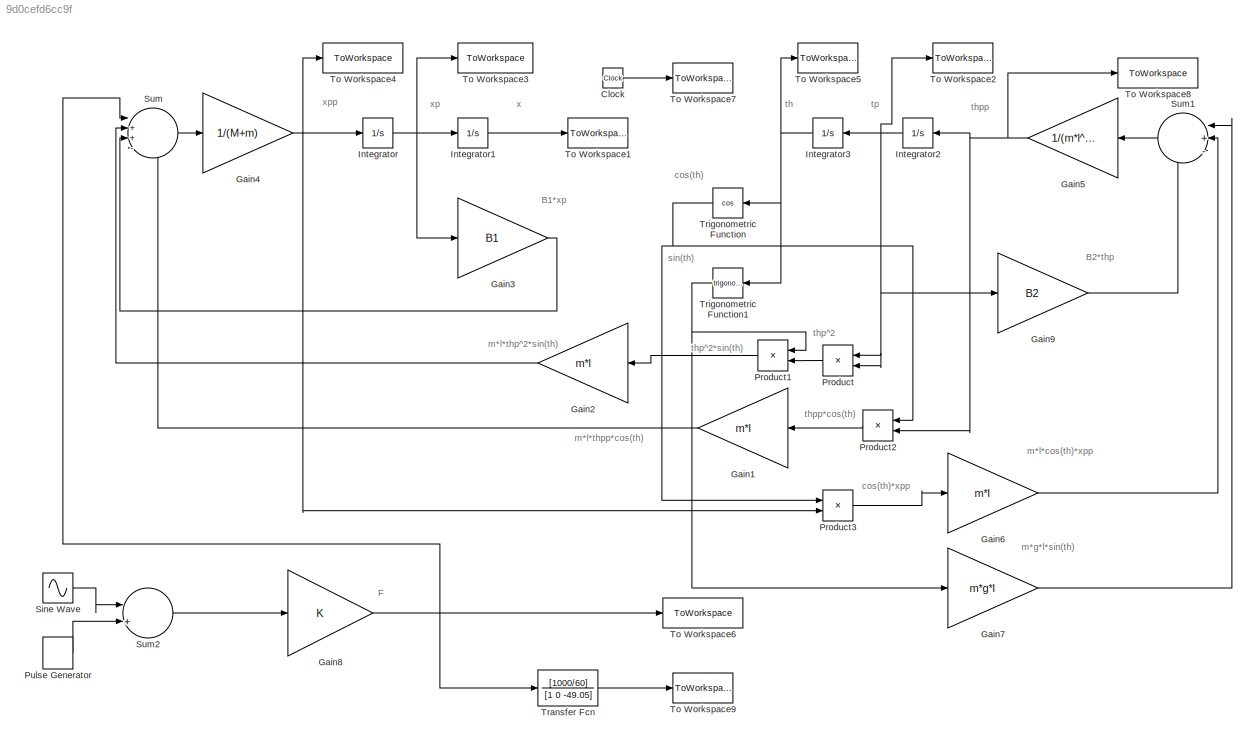
MODEL slx_9d0cefd6cc9f
KIND model
CONFIG InitFcn = M=0.2;m=0.1;l=0.3;B1=0.1;B2=0.1;g=9.81;
BLOCK [Clock] Clock
  Decimation = 100
BLOCK [Gain] Gain1
  Gain = m*l
  OutDataTypeStr = Inherit: Inherit via internal rule
  ParamDataTypeStr = Inherit: Inherit via internal rule
  SaturateOnIntegerOverflow = off
BLOCK [Gain] Gain2
  Gain = m*l
  OutDataTypeStr = Inherit: Inherit via internal rule
  ParamDataTypeStr = Inherit: Inherit via internal rule
  SaturateOnIntegerOverflow = off
BLOCK [Gain] Gain3
  Gain = B1
  OutDataTypeStr = Inherit: Inherit via internal rule
  ParamDataTypeStr = Inherit: Inherit via internal rule
  SaturateOnIntegerOverflow = off
BLOCK [Gain] Gain4
  Gain = 1/(M+m)
  OutDataTypeStr = Inherit: Inherit via internal rule
  ParamDataTypeStr = Inherit: Inherit via internal rule
  SaturateOnIntegerOverflow = off
BLOCK [Gain] Gain5
  Gain = 1/(m*l^2)
  OutDataTypeStr = Inherit: Inherit via internal rule
  ParamDataTypeStr = Inherit: Inherit via internal rule
  SaturateOnIntegerOverflow = off
BLOCK [Gain] Gain6
  Gain = m*l
  OutDataTypeStr = Inherit: Inherit via internal rule
  ParamDataTypeStr = Inherit: Inherit via internal rule
  SaturateOnIntegerOverflow = off
BLOCK [Gain] Gain7
  Gain = m*g*l
  OutDataTypeStr = Inherit: Inherit via internal rule
  ParamDataTypeStr = Inherit: Inherit via internal rule
  SaturateOnIntegerOverflow = off
BLOCK [Gain] Gain8
  OutDataTypeStr = Inherit: Inherit via internal rule
  ParamDataTypeStr = Inherit: Inherit via internal rule
  SaturateOnIntegerOverflow = off
BLOCK [Gain] Gain9
  Gain = B2
  OutDataTypeStr = Inherit: Inherit via internal rule
  ParamDataTypeStr = Inherit: Inherit via internal rule
  SaturateOnIntegerOverflow = off
BLOCK [Integrator] Integrator
  Ports = [1, 1]
BLOCK [Integrator] Integrator1
  Ports = [1, 1]
BLOCK [Integrator] Integrator2
  Ports = [1, 1]
BLOCK [Integrator] Integrator3
  InitialCondition = pi/2
  LimitOutput = on
  LowerSaturationLimit = -pi
  Ports = [1, 1]
  UpperSaturationLimit = pi
BLOCK [Product] Product
  InputSameDT = off
  OutDataTypeStr = Inherit: Inherit via internal rule
  Ports = [2, 1]
  RndMeth = Floor
  SaturateOnIntegerOverflow = off
BLOCK [Product] Product1
  InputSameDT = off
  OutDataTypeStr = Inherit: Inherit via internal rule
  Ports = [2, 1]
  RndMeth = Floor
  SaturateOnIntegerOverflow = off
BLOCK [Product] Product2
  InputSameDT = off
  OutDataTypeStr = Inherit: Inherit via internal rule
  Ports = [2, 1]
  RndMeth = Floor
  SaturateOnIntegerOverflow = off
BLOCK [Product] Product3
  InputSameDT = off
  OutDataTypeStr = Inherit: Inherit via internal rule
  Ports = [2, 1]
  RndMeth = Floor
  SaturateOnIntegerOverflow = off
BLOCK [DiscretePulseGenerator] Pulse Generator
  Amplitude = 0.1
  Period = 1
  Ports = [0, 1]
  PulseType = Time based
  PulseWidth = 50
BLOCK [Sin] Sine Wave
  Amplitude = 0
  Ports = [0, 1]
  SampleTime = 0
BLOCK [Sum] Sum
  IconShape = round
  InputSameDT = off
  Inputs = |++--
  OutDataTypeStr = Inherit: Inherit via internal rule
  Ports = [4, 1]
  SaturateOnIntegerOverflow = off
BLOCK [Sum] Sum1
  IconShape = round
  InputSameDT = off
  Inputs = |+--
  OutDataTypeStr = Inherit: Inherit via internal rule
  Ports = [3, 1]
  SaturateOnIntegerOverflow = off
BLOCK [Sum] Sum2
  IconShape = round
  InputSameDT = off
  Inputs = |++
  OutDataTypeStr = Inherit: Inherit via internal rule
  Ports = [2, 1]
  SaturateOnIntegerOverflow = off
BLOCK [ToWorkspace] To Workspace1
  MaxDataPoints = inf
  Ports = [1]
  SampleTime = 0.01
  VariableName = Posicion_x
BLOCK [ToWorkspace] To Workspace2
  MaxDataPoints = inf
  Ports = [1]
  SampleTime = 0.01
  VariableName = Velocidad_th
BLOCK [ToWorkspace] To Workspace3
  MaxDataPoints = inf
  Ports = [1]
  SampleTime = 0.01
  VariableName = Velocidad_x
BLOCK [ToWorkspace] To Workspace4
  MaxDataPoints = inf
  Ports = [1]
  SampleTime = 0.01
  VariableName = Aceleracion_x
BLOCK [ToWorkspace] To Workspace5
  MaxDataPoints = inf
  Ports = [1]
  SampleTime = 0.01
  VariableName = Posicion_th
BLOCK [ToWorkspace] To Workspace6
  MaxDataPoints = inf
  Ports = [1]
  SampleTime = 0.01
  VariableName = Senal_Entrada
BLOCK [ToWorkspace] To Workspace7
  MaxDataPoints = inf
  Ports = [1]
  SampleTime = 0.01
  VariableName = Tiempo
BLOCK [ToWorkspace] To Workspace8
  MaxDataPoints = inf
  Ports = [1]
  SampleTime = 0.01
  VariableName = Aceleracion_th
BLOCK [ToWorkspace] To Workspace9
  MaxDataPoints = inf
  Ports = [1]
  SampleTime = 0.01
  VariableName = Posicion_th2
BLOCK [TransferFcn] Transfer Fcn
  Denominator = [1 0 -49.05]
  Numerator = [1000/60]
BLOCK [Trigonometry] Trigonometric Function
  Operator = cos
  Ports = [1, 1]
BLOCK [Trigonometry] Trigonometric Function1
  Ports = [1, 1]
ANNOTATION (root): B1*xp
ANNOTATION (root): B2*thp
ANNOTATION (root): F
ANNOTATION (root): cos(th)
ANNOTATION (root): cos(th)*xpp
ANNOTATION (root): m*g*l*sin(th)
ANNOTATION (root): m*l*cos(th)*xpp
ANNOTATION (root): m*l*thp^2*sin(th)
ANNOTATION (root): m*l*thpp*cos(th)
ANNOTATION (root): sin(th)
ANNOTATION (root): th
ANNOTATION (root): thp^2
ANNOTATION (root): thp^2*sin(th)
ANNOTATION (root): thpp
ANNOTATION (root): thpp*cos(th)
ANNOTATION (root): tp
ANNOTATION (root): x
ANNOTATION (root): xp
ANNOTATION (root): xpp
LINE Clock:1 -> To Workspace7:1
LINE Gain1:1 -> Sum:4
LINE Gain2:1 -> Sum:2
LINE Gain3:1 -> Sum:3
NET Gain4:1 -> Integrator:1, Product3:2, To Workspace4:1
NET Gain5:1 -> Integrator2:1, Product2:2, To Workspace8:1
LINE Gain6:1 -> Sum1:2
LINE Gain7:1 -> Sum1:1
NET Gain8:1 -> Sum:1, To Workspace6:1, Transfer Fcn:1
LINE Gain9:1 -> Sum1:3
LINE Integrator1:1 -> To Workspace1:1
NET Integrator2:1 -> Gain9:1, Integrator3:1, Product:1, Product:2, To Workspace2:1
NET Integrator3:1 -> To Workspace5:1, Trigonometric Function1:1, Trigonometric Function:1
NET Integrator:1 -> Gain3:1, Integrator1:1, To Workspace3:1
LINE Product1:1 -> Gain2:1
LINE Product2:1 -> Gain1:1
LINE Product3:1 -> Gain6:1
LINE Product:1 -> Product1:2
LINE Pulse Generator:1 -> Sum2:2
LINE Sine Wave:1 -> Sum2:1
LINE Sum1:1 -> Gain5:1
LINE Sum2:1 -> Gain8:1
LINE Sum:1 -> Gain4:1
LINE Transfer Fcn:1 -> To Workspace9:1
NET Trigonometric Function1:1 -> Gain7:1, Product1:1
NET Trigonometric Function:1 -> Product2:1, Product3:1
note: NET lines group one-source signal fan-out (src -> all destinations, sorted); 1:1 wires keep LINE
